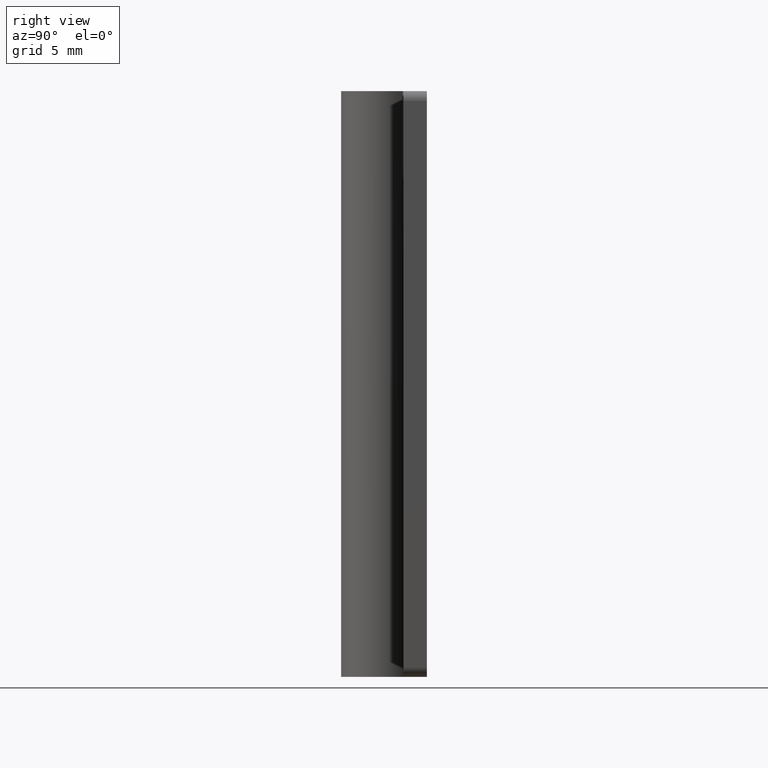
[diagram: clean part render]
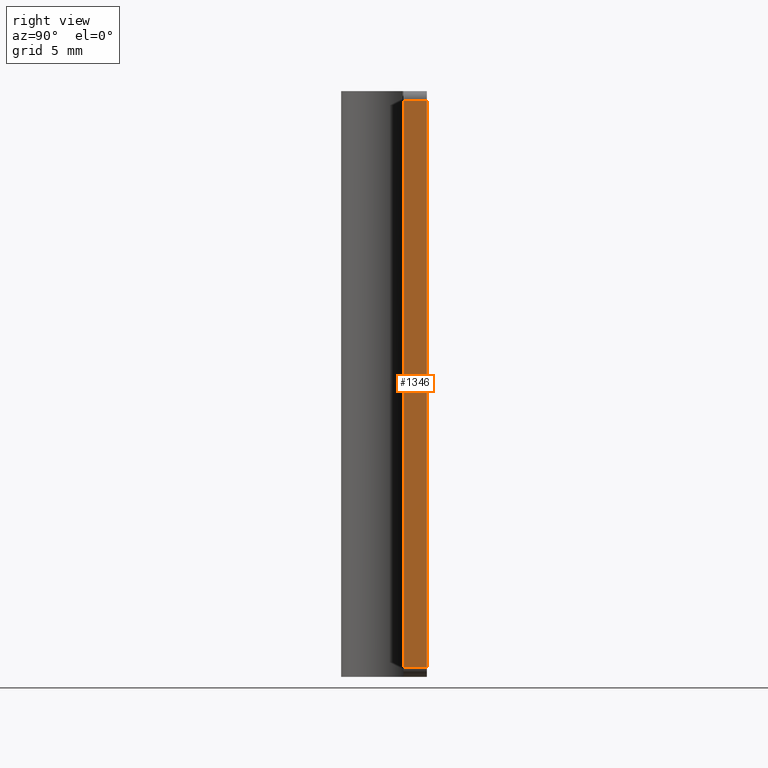
[diagram: same view with one face highlighted and labeled with its STEP entity id]
A machine part, right view. The second image highlights one B-rep face of the part: STEP entity #1346.
In plain terms, the highlighted face is a freeform B-spline surface patch.
Its self-contained STEP definition (entity closure, byte-faithful):
#990=CARTESIAN_POINT('',(11.0,1.0,29.500000000000000));
#991=VERTEX_POINT('',#990);
#1007=CARTESIAN_POINT('',(11.0,2.200000999999950,29.500000000000000));
#1008=VERTEX_POINT('',#1007);
#1009=CARTESIAN_POINT('',(11.0,2.200000999999950,29.500000000000000));
#1010=CARTESIAN_POINT('',(11.0,1.0,29.500000000000000));
#1011=QUASI_UNIFORM_CURVE('',1,(#1009,#1010),.UNSPECIFIED.,.F.,.U.);
#1012=EDGE_CURVE('',#1008,#991,#1011,.T.);
#1053=CARTESIAN_POINT('',(11.0,1.0,0.500000000000014));
#1054=VERTEX_POINT('',#1053);
#1075=CARTESIAN_POINT('',(11.0,2.200001000000000,0.499999999999945));
#1076=VERTEX_POINT('',#1075);
#1090=CARTESIAN_POINT('',(11.0,2.200001000000000,0.499999999999945));
#1091=CARTESIAN_POINT('',(11.0,1.0,0.500000000000014));
#1092=QUASI_UNIFORM_CURVE('',1,(#1090,#1091),.UNSPECIFIED.,.F.,.U.);
#1093=EDGE_CURVE('',#1076,#1054,#1092,.T.);
#1327=CARTESIAN_POINT('',(11.0,0.940059952375835,30.948549943792369));
#1328=CARTESIAN_POINT('',(11.0,0.940059952375835,-0.948550721633043));
#1329=CARTESIAN_POINT('',(11.0,2.259941079810700,30.948549943792379));
#1330=CARTESIAN_POINT('',(11.0,2.259941079810700,-0.948550721633043));
#1331=B_SPLINE_SURFACE_WITH_KNOTS('',1,1,((#1327,#1329),(#1328,#1330)),.UNSPECIFIED.,.F.,.F.,.U.,(2,2),(2,2),(0.0,31.897100665425420),(0.041708334948495,0.958291687403247),.UNSPECIFIED.);
#1332=CARTESIAN_POINT('',(11.0,2.200001000000000,0.499999999999945));
#1333=CARTESIAN_POINT('',(11.0,2.200000999999950,29.500000000000000));
#1334=QUASI_UNIFORM_CURVE('',1,(#1332,#1333),.UNSPECIFIED.,.F.,.U.);
#1335=EDGE_CURVE('',#1076,#1008,#1334,.T.);
#1336=ORIENTED_EDGE('',*,*,#1335,.T.);
#1337=ORIENTED_EDGE('',*,*,#1012,.T.);
#1338=CARTESIAN_POINT('',(11.0,1.0,0.500000000000014));
#1339=CARTESIAN_POINT('',(11.0,1.0,29.500000000000000));
#1340=QUASI_UNIFORM_CURVE('',1,(#1338,#1339),.UNSPECIFIED.,.F.,.U.);
#1341=EDGE_CURVE('',#1054,#991,#1340,.T.);
#1342=ORIENTED_EDGE('',*,*,#1341,.F.);
#1343=ORIENTED_EDGE('',*,*,#1093,.F.);
#1344=EDGE_LOOP('',(#1336,#1337,#1342,#1343));
#1345=FACE_OUTER_BOUND('',#1344,.T.);
#1346=ADVANCED_FACE('',(#1345),#1331,.T.);